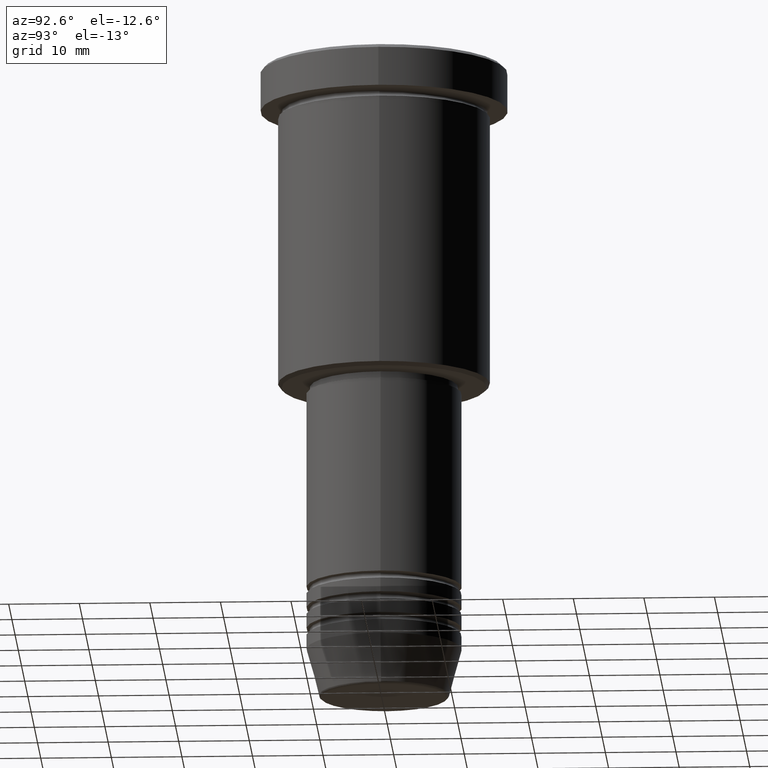
[diagram: clean part render]
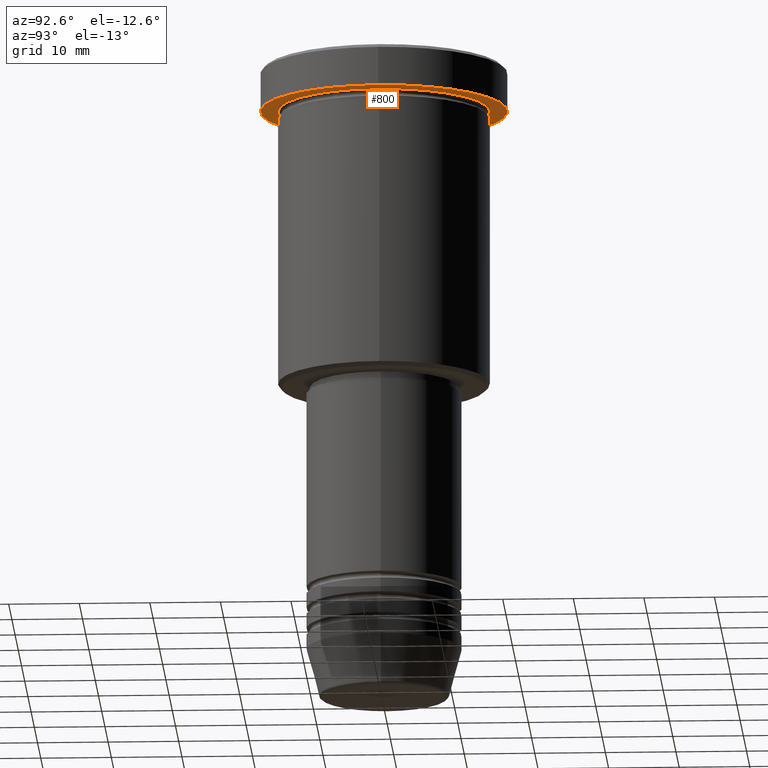
[diagram: same view with one face highlighted and labeled with its STEP entity id]
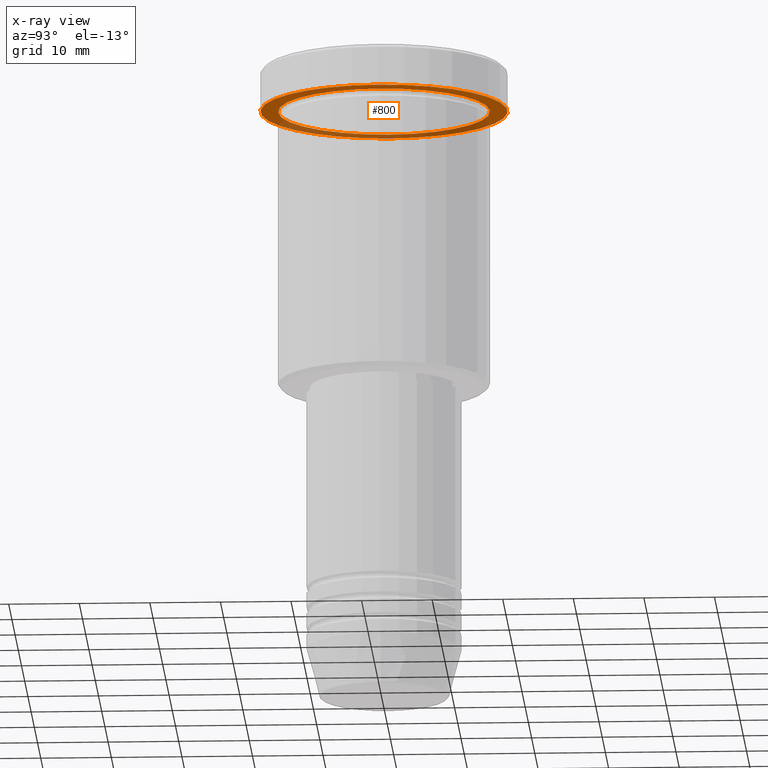
[diagram: x-ray of the same camera — body ghosted, the highlighted face saturated]
A machine part, auxiliary view. The second image highlights one B-rep face of the part: STEP entity #800.
The next image is the same camera in x-ray: the body ghosted, the highlighted face saturated — about 36% of this face is hidden behind the body in this view.
In plain terms, the highlighted planar face has unit normal (0, 0, -1).
Its self-contained STEP definition (entity closure, byte-faithful):
#42 = AXIS2_PLACEMENT_3D ( 'NONE', #1149, #968, #258 ) ;
#69 = ORIENTED_EDGE ( 'NONE', *, *, #763, .T. ) ;
#216 = VERTEX_POINT ( 'NONE', #830 ) ;
#258 = DIRECTION ( 'NONE',  ( -1.000000000000000000, 0.000000000000000000, -0.000000000000000000 ) ) ;
#259 = DIRECTION ( 'NONE',  ( 1.000000000000000000, 0.000000000000000000, 0.000000000000000000 ) ) ;
#273 = CIRCLE ( 'NONE', #330, 15.00000000000000000 ) ;
#298 = DIRECTION ( 'NONE',  ( -0.000000000000000000, -0.000000000000000000, 1.000000000000000000 ) ) ;
#330 = AXIS2_PLACEMENT_3D ( 'NONE', #974, #427, #809 ) ;
#397 = EDGE_CURVE ( 'NONE', #797, #216, #1173, .T. ) ;
#424 = ORIENTED_EDGE ( 'NONE', *, *, #770, .T. ) ;
#427 = DIRECTION ( 'NONE',  ( -0.000000000000000000, -0.000000000000000000, 1.000000000000000000 ) ) ;
#428 = AXIS2_PLACEMENT_3D ( 'NONE', #517, #614, #259 ) ;
#450 = CIRCLE ( 'NONE', #947, 15.00000000000000000 ) ;
#516 = ORIENTED_EDGE ( 'NONE', *, *, #397, .F. ) ;
#517 = CARTESIAN_POINT ( 'NONE',  ( 0.000000000000000000, 0.000000000000000000, -5.999999999999995559 ) ) ;
#535 = PLANE ( 'NONE',  #42 ) ;
#586 = VERTEX_POINT ( 'NONE', #863 ) ;
#603 = CARTESIAN_POINT ( 'NONE',  ( 17.50000000000000000, 0.000000000000000000, -5.999999999999995559 ) ) ;
#614 = DIRECTION ( 'NONE',  ( -0.000000000000000000, -0.000000000000000000, 1.000000000000000000 ) ) ;
#625 = CARTESIAN_POINT ( 'NONE',  ( 0.000000000000000000, 0.000000000000000000, -5.999999999999995559 ) ) ;
#694 = FACE_OUTER_BOUND ( 'NONE', #952, .T. ) ;
#713 = ORIENTED_EDGE ( 'NONE', *, *, #1035, .F. ) ;
#763 = EDGE_CURVE ( 'NONE', #586, #1166, #273, .T. ) ;
#768 = EDGE_LOOP ( 'NONE', ( #424, #69 ) ) ;
#770 = EDGE_CURVE ( 'NONE', #1166, #586, #450, .T. ) ;
#783 = CARTESIAN_POINT ( 'NONE',  ( 0.000000000000000000, 0.000000000000000000, -5.999999999999995559 ) ) ;
#797 = VERTEX_POINT ( 'NONE', #603 ) ;
#800 = ADVANCED_FACE ( 'NONE', ( #906, #694 ), #535, .T. ) ;
#808 = CARTESIAN_POINT ( 'NONE',  ( -15.00000000000000000, 0.000000000000000000, -5.999999999999994671 ) ) ;
#809 = DIRECTION ( 'NONE',  ( -1.000000000000000000, 0.000000000000000000, 0.000000000000000000 ) ) ;
#830 = CARTESIAN_POINT ( 'NONE',  ( -17.50000000000000000, 2.143131898507868248E-15, -5.999999999999995559 ) ) ;
#863 = CARTESIAN_POINT ( 'NONE',  ( 15.00000000000000000, 1.836970198721029589E-15, -5.999999999999994671 ) ) ;
#906 = FACE_BOUND ( 'NONE', #768, .T. ) ;
#947 = AXIS2_PLACEMENT_3D ( 'NONE', #625, #1156, #1161 ) ;
#952 = EDGE_LOOP ( 'NONE', ( #516, #713 ) ) ;
#968 = DIRECTION ( 'NONE',  ( 0.000000000000000000, 0.000000000000000000, -1.000000000000000000 ) ) ;
#974 = CARTESIAN_POINT ( 'NONE',  ( 0.000000000000000000, 0.000000000000000000, -5.999999999999995559 ) ) ;
#986 = CIRCLE ( 'NONE', #1053, 17.50000000000000000 ) ;
#1035 = EDGE_CURVE ( 'NONE', #216, #797, #986, .T. ) ;
#1043 = DIRECTION ( 'NONE',  ( 1.000000000000000000, 0.000000000000000000, 0.000000000000000000 ) ) ;
#1053 = AXIS2_PLACEMENT_3D ( 'NONE', #783, #298, #1043 ) ;
#1149 = CARTESIAN_POINT ( 'NONE',  ( 0.000000000000000000, 17.50000000000000000, -5.999999999999995559 ) ) ;
#1156 = DIRECTION ( 'NONE',  ( -0.000000000000000000, -0.000000000000000000, 1.000000000000000000 ) ) ;
#1161 = DIRECTION ( 'NONE',  ( -1.000000000000000000, 0.000000000000000000, 0.000000000000000000 ) ) ;
#1166 = VERTEX_POINT ( 'NONE', #808 ) ;
#1173 = CIRCLE ( 'NONE', #428, 17.50000000000000000 ) ;